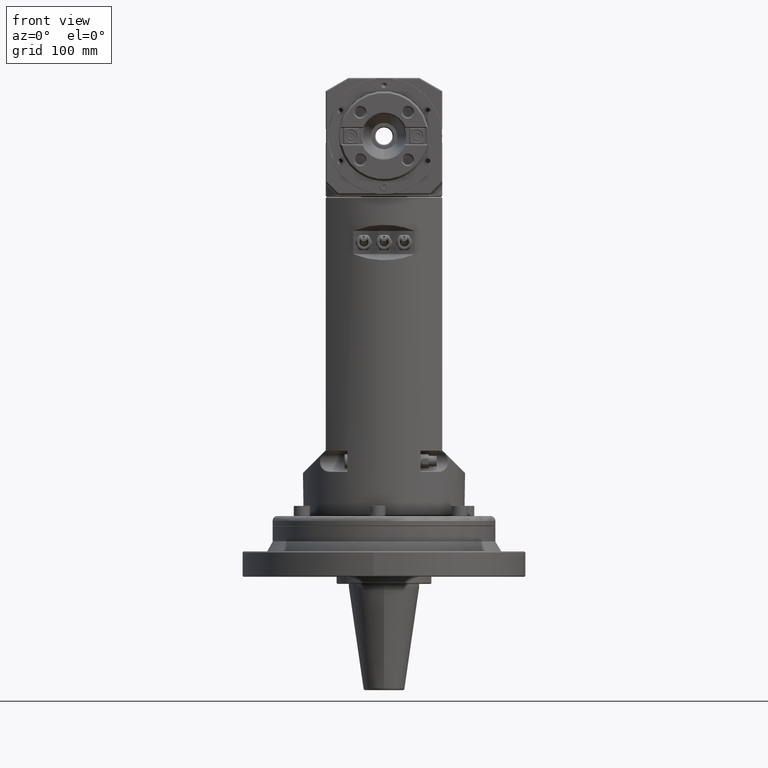
[diagram: clean part render]
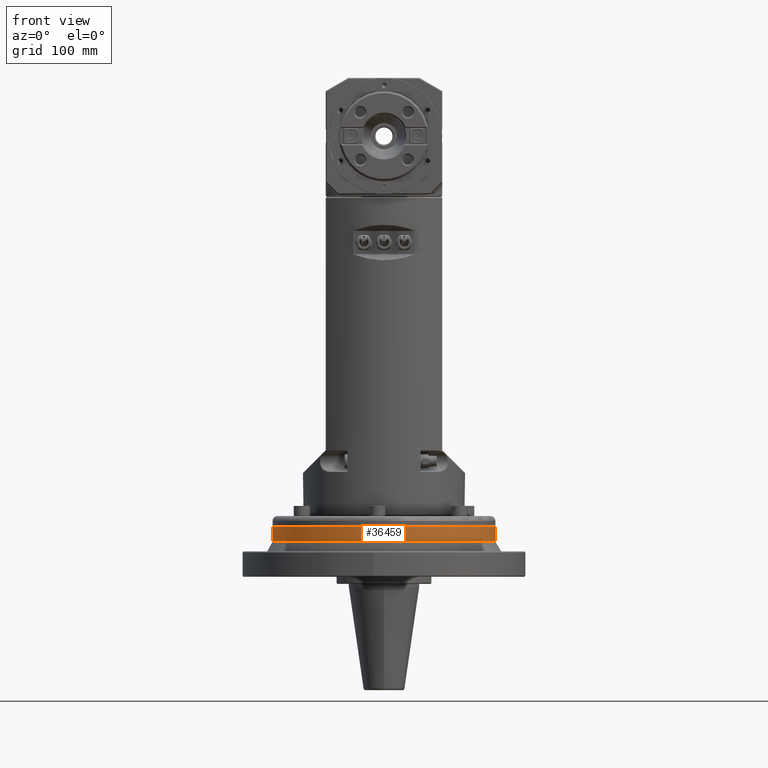
[diagram: same view with one face highlighted and labeled with its STEP entity id]
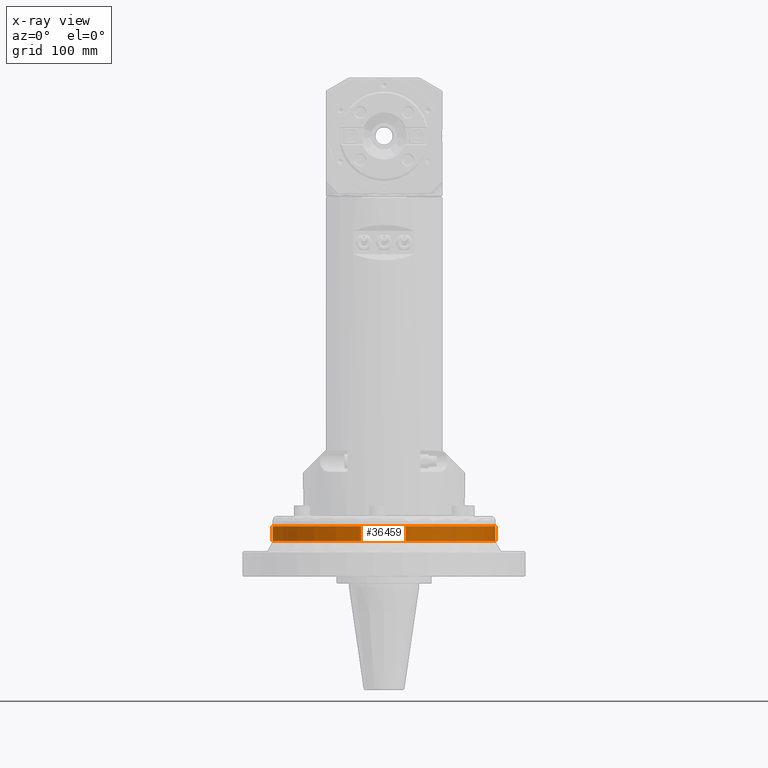
[diagram: x-ray of the same camera — body ghosted, the highlighted face saturated]
A machine part, front view. The second image highlights one B-rep face of the part: STEP entity #36459.
The next image is the same camera in x-ray: the body ghosted, the highlighted face saturated — about 0% of this face is hidden behind the body in this view.
In plain terms, the highlighted cylindrical surface (bore or boss wall) has radius 110 mm, axis along (-0, 0, 1).
Its self-contained STEP definition (entity closure, byte-faithful):
#4593=FACE_OUTER_BOUND('',#6795,.T.);
#6795=EDGE_LOOP('',(#25325,#25326,#25327,#25328,#25329));
#9278=LINE('',#54036,#11824);
#11824=VECTOR('',#43200,4.33070866141732);
#14419=CIRCLE('',#38923,4.33070866141732);
#14420=CIRCLE('',#38925,4.33070866141732);
#14421=CIRCLE('',#38926,4.33070866141732);
#16327=VERTEX_POINT('',#54029);
#16328=VERTEX_POINT('',#54033);
#16329=VERTEX_POINT('',#54034);
#19827=EDGE_CURVE('',#16327,#16327,#14419,.T.);
#19829=EDGE_CURVE('',#16328,#16329,#14420,.T.);
#19830=EDGE_CURVE('',#16329,#16327,#9278,.T.);
#19831=EDGE_CURVE('',#16329,#16328,#14421,.T.);
#25325=ORIENTED_EDGE('',*,*,#19829,.T.);
#25326=ORIENTED_EDGE('',*,*,#19830,.T.);
#25327=ORIENTED_EDGE('',*,*,#19827,.F.);
#25328=ORIENTED_EDGE('',*,*,#19830,.F.);
#25329=ORIENTED_EDGE('',*,*,#19831,.T.);
#35930=CYLINDRICAL_SURFACE('',#38924,4.33070866141732);
#36459=ADVANCED_FACE('',(#4593),#35930,.T.);
#38923=AXIS2_PLACEMENT_3D('',#54030,#43193,#43194);
#38924=AXIS2_PLACEMENT_3D('',#54032,#43196,#43197);
#38925=AXIS2_PLACEMENT_3D('',#54035,#43198,#43199);
#38926=AXIS2_PLACEMENT_3D('',#54037,#43201,#43202);
#43193=DIRECTION('center_axis',(0.,1.,0.));
#43194=DIRECTION('ref_axis',(1.,0.,0.));
#43196=DIRECTION('center_axis',(0.,-1.,0.));
#43197=DIRECTION('ref_axis',(-1.,0.,0.));
#43198=DIRECTION('center_axis',(0.,1.,0.));
#43199=DIRECTION('ref_axis',(1.,0.,0.));
#43200=DIRECTION('',(0.,1.,0.));
#43201=DIRECTION('center_axis',(0.,1.,0.));
#43202=DIRECTION('ref_axis',(1.,0.,0.));
#54029=CARTESIAN_POINT('',(4.33070866141732,0.976377952755906,5.30358850024444E-16));
#54030=CARTESIAN_POINT('Origin',(0.,0.976377952755906,0.));
#54032=CARTESIAN_POINT('Origin',(0.,1.01377952755906,0.));
#54033=CARTESIAN_POINT('',(-4.33070866141732,0.401574803149606,0.));
#54034=CARTESIAN_POINT('',(4.33070866141732,0.401574803149606,5.30358850024444E-16));
#54035=CARTESIAN_POINT('Origin',(0.,0.401574803149606,0.));
#54036=CARTESIAN_POINT('',(4.33070866141732,1.01377952755906,5.30358850024444E-16));
#54037=CARTESIAN_POINT('Origin',(0.,0.401574803149606,0.));